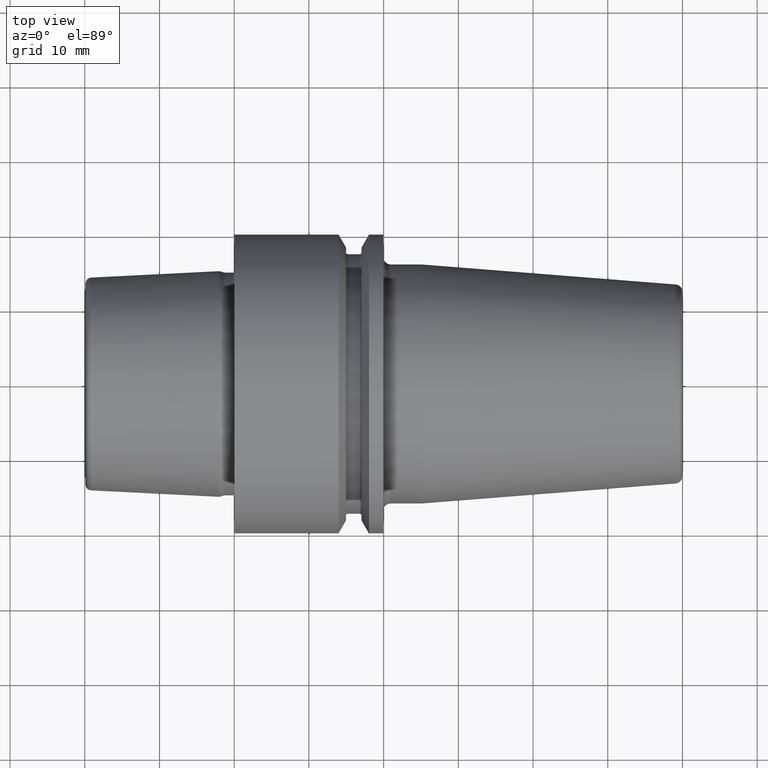
[diagram: clean part render]
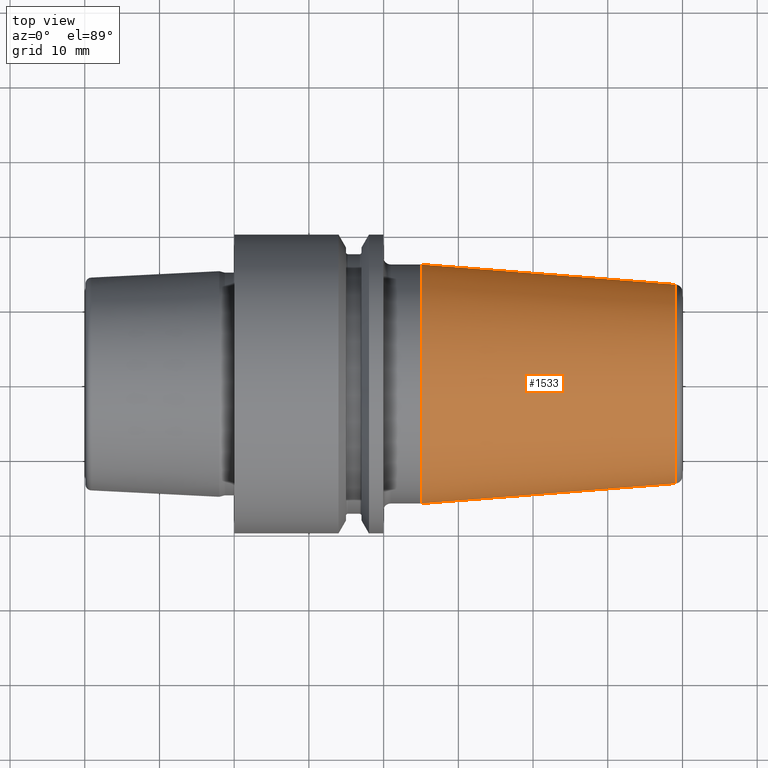
[diagram: same view with one face highlighted and labeled with its STEP entity id]
A machine part, top view. The second image highlights one B-rep face of the part: STEP entity #1533.
In plain terms, the highlighted conical surface has half-angle 4.5 deg.
Its self-contained STEP definition (entity closure, byte-faithful):
#489=CARTESIAN_POINT('',(2.505793697552E1,0.E0,0.E0));
#490=DIRECTION('',(1.E0,0.E0,0.E0));
#491=DIRECTION('',(0.E0,1.E0,0.E0));
#492=AXIS2_PLACEMENT_3D('',#489,#490,#491);
#517=DIRECTION('',(-9.969173337331E-1,7.845909572785E-2,1.994380427684E-14));
#518=VECTOR('',#517,3.412572032709E1);
#519=CARTESIAN_POINT('',(5.907845909573E1,1.332252684207E1,
-6.786372521310E-13));
#520=LINE('',#519,#518);
#521=DIRECTION('',(-9.969173337331E-1,-7.845909572785E-2,-1.993185186257E-14));
#522=VECTOR('',#521,3.412572032709E1);
#523=CARTESIAN_POINT('',(5.907845909573E1,-1.332252684207E1,
6.782293673846E-13));
#524=LINE('',#523,#522);
#535=CARTESIAN_POINT('',(5.907845909573E1,0.E0,0.E0));
#536=DIRECTION('',(-1.E0,0.E0,0.E0));
#537=DIRECTION('',(0.E0,-1.E0,0.E0));
#538=AXIS2_PLACEMENT_3D('',#535,#536,#537);
#686=CARTESIAN_POINT('',(5.907845909573E1,1.332252684207E1,0.E0));
#687=CARTESIAN_POINT('',(5.907845909573E1,-1.332252684207E1,0.E0));
#688=VERTEX_POINT('',#686);
#689=VERTEX_POINT('',#687);
#694=CARTESIAN_POINT('',(2.505793697552E1,1.6E1,0.E0));
#695=CARTESIAN_POINT('',(2.505793697552E1,-1.6E1,0.E0));
#696=VERTEX_POINT('',#694);
#697=VERTEX_POINT('',#695);
#1522=CARTESIAN_POINT('',(4.206819803562E1,0.E0,0.E0));
#1523=DIRECTION('',(-1.E0,0.E0,0.E0));
#1524=DIRECTION('',(0.E0,1.E0,0.E0));
#1525=AXIS2_PLACEMENT_3D('',#1522,#1523,#1524);
#1526=CONICAL_SURFACE('',#1525,1.466126342104E1,4.5E0);
#1527=ORIENTED_EDGE('',*,*,#1513,.F.);
#1528=ORIENTED_EDGE('',*,*,#1488,.T.);
#1529=ORIENTED_EDGE('',*,*,#1458,.F.);
#1530=ORIENTED_EDGE('',*,*,#1485,.F.);
#1531=EDGE_LOOP('',(#1527,#1528,#1529,#1530));
#1532=FACE_OUTER_BOUND('',#1531,.F.);
#1533=ADVANCED_FACE('',(#1532),#1526,.T.);
#493=CIRCLE('',#492,1.6E1);
#539=CIRCLE('',#538,1.332252684207E1);
#1458=EDGE_CURVE('',#696,#697,#493,.T.);
#1485=EDGE_CURVE('',#688,#696,#520,.T.);
#1488=EDGE_CURVE('',#689,#697,#524,.T.);
#1513=EDGE_CURVE('',#689,#688,#539,.T.);